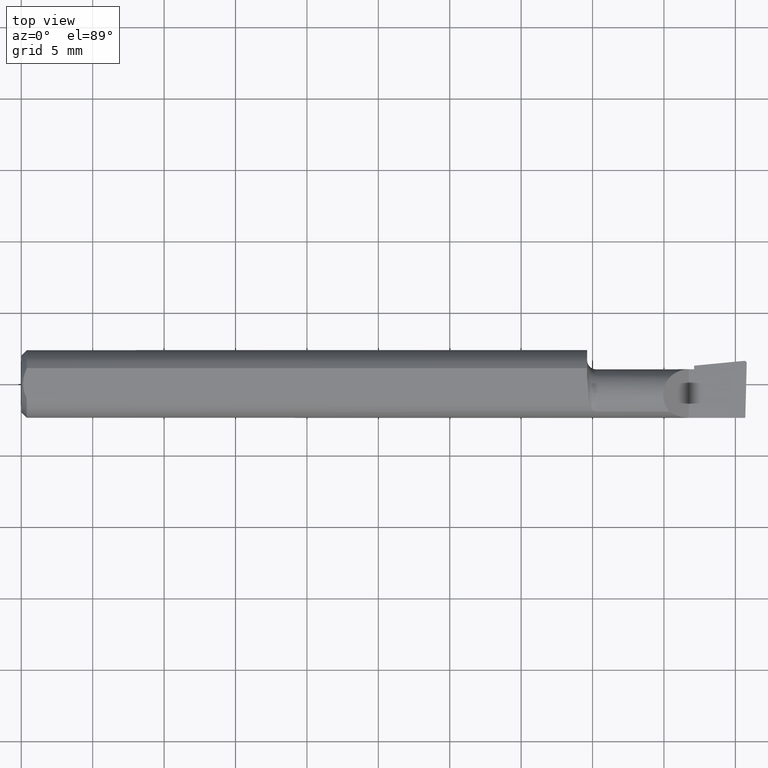
[diagram: clean part render]
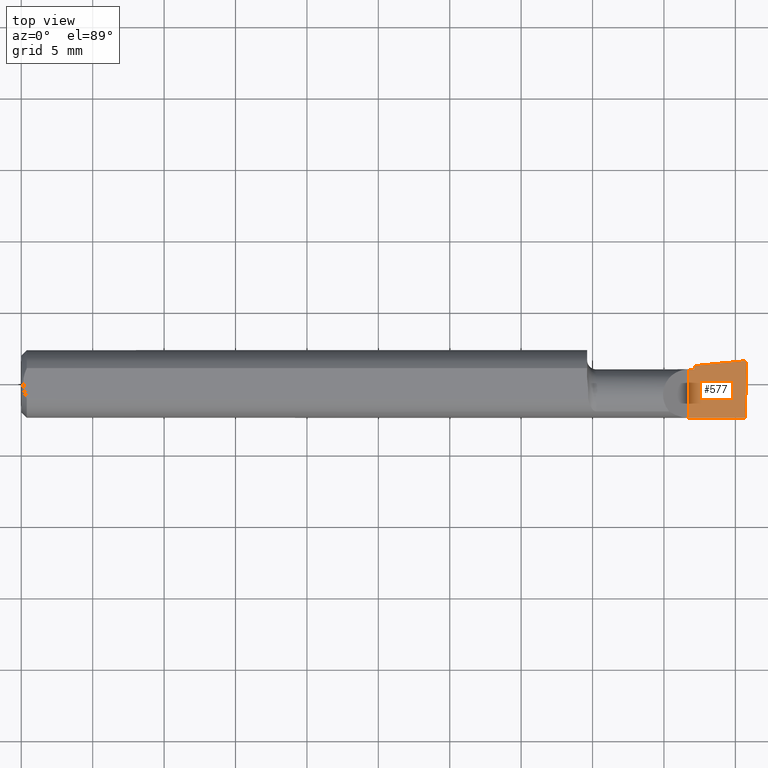
[diagram: same view with one face highlighted and labeled with its STEP entity id]
A machine part, top view. The second image highlights one B-rep face of the part: STEP entity #577.
In plain terms, the highlighted planar face has unit normal (-0, 0, -1).
Its self-contained STEP definition (entity closure, byte-faithful):
#4 = CARTESIAN_POINT ( 'NONE',  ( 1.993512870449312580, 0.06374616680637201771, -8.537024980200822558E-17 ) ) ;
#5 = ORIENTED_EDGE ( 'NONE', *, *, #438, .T. ) ;
#10 = CARTESIAN_POINT ( 'NONE',  ( 1.991772787678610435, -0.2497845628634191573, -6.377686106282116365E-17 ) ) ;
#30 = CARTESIAN_POINT ( 'NONE',  ( 1.993512870449312580, 0.06374616680637201771, -8.537024980200822558E-17 ) ) ;
#33 = CARTESIAN_POINT ( 'NONE',  ( 1.993512870449312580, 0.06374616680637201771, -8.537024980200822558E-17 ) ) ;
#39 = EDGE_CURVE ( 'NONE', #270, #443, #99, .T. ) ;
#40 = VERTEX_POINT ( 'NONE', #129 ) ;
#61 = CARTESIAN_POINT ( 'NONE',  ( 1.992906680581891354, 0.06371699102466910070, -6.439972649628823803E-17 ) ) ;
#99 =( BOUNDED_CURVE ( )  B_SPLINE_CURVE ( 3, ( #4, #288, #647, #294 ),
 .UNSPECIFIED., .F., .F. ) 
 B_SPLINE_CURVE_WITH_KNOTS ( ( 4, 4 ),
 ( 3.511516179717668606, 3.604018710826184524 ),
 .UNSPECIFIED. ) 
 CURVE ( )  GEOMETRIC_REPRESENTATION_ITEM ( )  RATIONAL_B_SPLINE_CURVE ( ( 1.000000000000000000, 0.9992870672494020834, 0.9992870672494020834, 1.000000000000000000 ) ) 
 REPRESENTATION_ITEM ( '' )  );
#103 = VERTEX_POINT ( 'NONE', #420 ) ;
#107 = EDGE_CURVE ( 'NONE', #435, #40, #649, .T. ) ;
#113 = PLANE ( 'NONE',  #400 ) ;
#115 =( BOUNDED_CURVE ( )  B_SPLINE_CURVE ( 3, ( #123, #456, #313, #33 ),
 .UNSPECIFIED., .F., .F. ) 
 B_SPLINE_CURVE_WITH_KNOTS ( ( 4, 4 ),
 ( 1.953092279228392680, 3.511516179717668606 ),
 .UNSPECIFIED. ) 
 CURVE ( )  GEOMETRIC_REPRESENTATION_ITEM ( )  RATIONAL_B_SPLINE_CURVE ( ( 1.000000000000000000, 0.8076450242550367031, 0.8076450242550367031, 1.000000000000000000 ) ) 
 REPRESENTATION_ITEM ( '' )  );
#123 = CARTESIAN_POINT ( 'NONE',  ( 1.999806390372778075, 0.05700634663142072761, -6.825504076481286703E-17 ) ) ;
#124 = DIRECTION ( 'NONE',  ( -1.000000000000000000, 0.0000000000000000000, 5.493159289247764363E-16 ) ) ;
#127 = CARTESIAN_POINT ( 'NONE',  ( 5.659797890829555466E-31, -0.09359999999999998876, 1.030335658007946046E-15 ) ) ;
#129 = CARTESIAN_POINT ( 'NONE',  ( 1.854999999999999982, 0.04040000000000000535, 1.030335658007946440E-15 ) ) ;
#150 = CARTESIAN_POINT ( 'NONE',  ( -3.026375355475530641E-19, 0.04039999999999996372, 1.030335658007946046E-15 ) ) ;
#151 = DIRECTION ( 'NONE',  ( 1.000000000000000000, 4.268512490100411279E-18, 0.0000000000000000000 ) ) ;
#159 = ORIENTED_EDGE ( 'NONE', *, *, #513, .F. ) ;
#167 = VERTEX_POINT ( 'NONE', #278 ) ;
#177 = VERTEX_POINT ( 'NONE', #591 ) ;
#194 = EDGE_CURVE ( 'NONE', #167, #443, #515, .T. ) ;
#208 = ORIENTED_EDGE ( 'NONE', *, *, #194, .F. ) ;
#217 = LINE ( 'NONE', #433, #453 ) ;
#233 = DIRECTION ( 'NONE',  ( -4.268512490100411279E-18, 1.000000000000000000, 2.344761903626518103E-33 ) ) ;
#241 = EDGE_CURVE ( 'NONE', #177, #435, #650, .T. ) ;
#270 = VERTEX_POINT ( 'NONE', #30 ) ;
#278 = CARTESIAN_POINT ( 'NONE',  ( 1.854999999999999982, 0.05043808801135921116, 1.030845766359249298E-15 ) ) ;
#282 = ORIENTED_EDGE ( 'NONE', *, *, #241, .F. ) ;
#288 = CARTESIAN_POINT ( 'NONE',  ( 1.993310817358675324, 0.06374616680637204547, -6.832789351565723493E-17 ) ) ;
#294 = CARTESIAN_POINT ( 'NONE',  ( 1.992906680581891354, 0.06371699102466910070, -6.439972649628823803E-17 ) ) ;
#303 = ORIENTED_EDGE ( 'NONE', *, *, #369, .F. ) ;
#309 = VERTEX_POINT ( 'NONE', #463 ) ;
#313 = CARTESIAN_POINT ( 'NONE',  ( 1.997312560284822958, 0.06374616680637211485, -7.052611464845218011E-17 ) ) ;
#328 = CARTESIAN_POINT ( 'NONE',  ( 1.840000000000000080, 0.04039999999999989433, 1.959434878635762025E-17 ) ) ;
#346 = VECTOR ( 'NONE', #151, 39.37007874015748143 ) ;
#369 = EDGE_CURVE ( 'NONE', #40, #167, #217, .T. ) ;
#370 = DIRECTION ( 'NONE',  ( -5.493159289247764363E-16, 0.0000000000000000000, -1.000000000000000000 ) ) ;
#377 = DIRECTION ( 'NONE',  ( 0.9953961983671787417, 0.09584575252022466130, -5.467869873542577569E-16 ) ) ;
#389 = CARTESIAN_POINT ( 'NONE',  ( 1.014425817094896765, -0.03050000000000000280, 4.730953979651876041E-16 ) ) ;
#400 = AXIS2_PLACEMENT_3D ( 'NONE', #409, #370, #124 ) ;
#405 = EDGE_LOOP ( 'NONE', ( #5, #424, #642, #208, #303, #626, #282, #159 ) ) ;
#409 = CARTESIAN_POINT ( 'NONE',  ( 2.000000000000000000, -0.2500000000000000555, -6.829619984160658046E-17 ) ) ;
#414 = VECTOR ( 'NONE', #621, 39.37007874015748143 ) ;
#416 = CARTESIAN_POINT ( 'NONE',  ( 1.840000000000000080, -0.2500000000000000555, 1.959434878635762025E-17 ) ) ;
#420 = CARTESIAN_POINT ( 'NONE',  ( 1.995862624392067852, -0.09360000000000009979, -6.605666309584449409E-17 ) ) ;
#424 = ORIENTED_EDGE ( 'NONE', *, *, #653, .T. ) ;
#433 = CARTESIAN_POINT ( 'NONE',  ( 1.854999999999999982, -0.2500000000000000555, 1.135460985248596835E-17 ) ) ;
#435 = VERTEX_POINT ( 'NONE', #328 ) ;
#438 = EDGE_CURVE ( 'NONE', #103, #309, #609, .T. ) ;
#443 = VERTEX_POINT ( 'NONE', #61 ) ;
#453 = VECTOR ( 'NONE', #233, 39.37007874015748143 ) ;
#455 = VECTOR ( 'NONE', #587, 39.37007874015748854 ) ;
#456 = CARTESIAN_POINT ( 'NONE',  ( 1.999910038027502335, 0.06096449087509769882, -7.195295054753372541E-17 ) ) ;
#463 = CARTESIAN_POINT ( 'NONE',  ( 1.999806390372778075, 0.05700634663142072761, -6.825504076481286703E-17 ) ) ;
#483 = FACE_OUTER_BOUND ( 'NONE', #405, .T. ) ;
#492 = DIRECTION ( 'NONE',  ( -0.0000000000000000000, 1.000000000000000000, -0.0000000000000000000 ) ) ;
#507 = VECTOR ( 'NONE', #492, 39.37007874015748143 ) ;
#513 = EDGE_CURVE ( 'NONE', #103, #177, #655, .T. ) ;
#515 = LINE ( 'NONE', #389, #549 ) ;
#549 = VECTOR ( 'NONE', #377, 39.37007874015748143 ) ;
#577 = ADVANCED_FACE ( 'NONE', ( #483 ), #113, .F. ) ;
#587 = DIRECTION ( 'NONE',  ( 0.02617694830786037805, 0.9996573249755575929, -1.459184416195409269E-17 ) ) ;
#591 = CARTESIAN_POINT ( 'NONE',  ( 1.840000000000000080, -0.09360000000000005815, 1.959434878635762025E-17 ) ) ;
#609 = LINE ( 'NONE', #10, #455 ) ;
#621 = DIRECTION ( 'NONE',  ( -1.000000000000000000, -0.0000000000000000000, -0.0000000000000000000 ) ) ;
#626 = ORIENTED_EDGE ( 'NONE', *, *, #107, .F. ) ;
#642 = ORIENTED_EDGE ( 'NONE', *, *, #39, .T. ) ;
#647 = CARTESIAN_POINT ( 'NONE',  ( 1.993108609909221673, 0.06373643460740105460, -6.821681774272517474E-17 ) ) ;
#649 = LINE ( 'NONE', #150, #346 ) ;
#650 = LINE ( 'NONE', #416, #507 ) ;
#653 = EDGE_CURVE ( 'NONE', #309, #270, #115, .T. ) ;
#655 = LINE ( 'NONE', #127, #414 ) ;